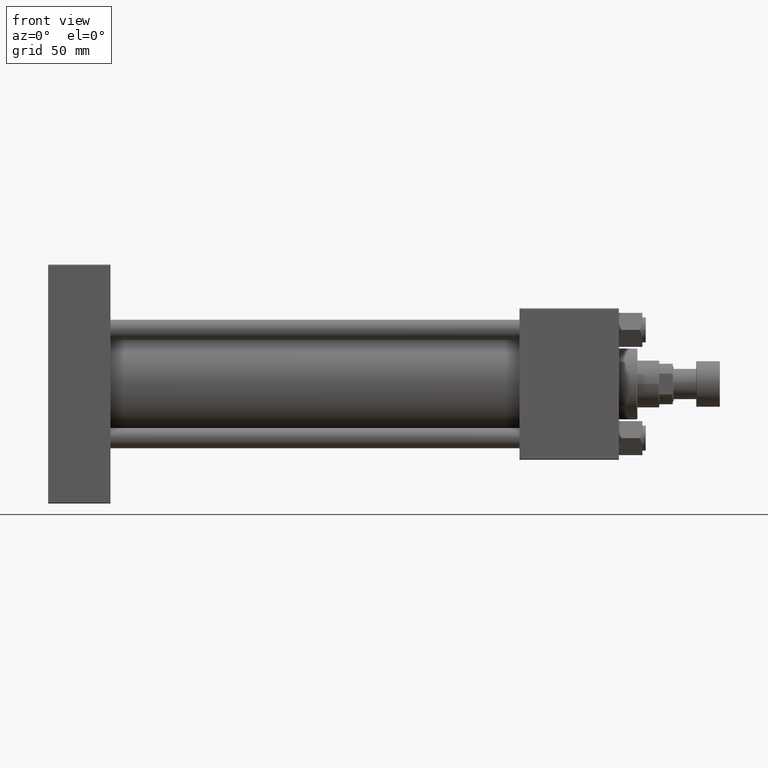
[diagram: clean part render]
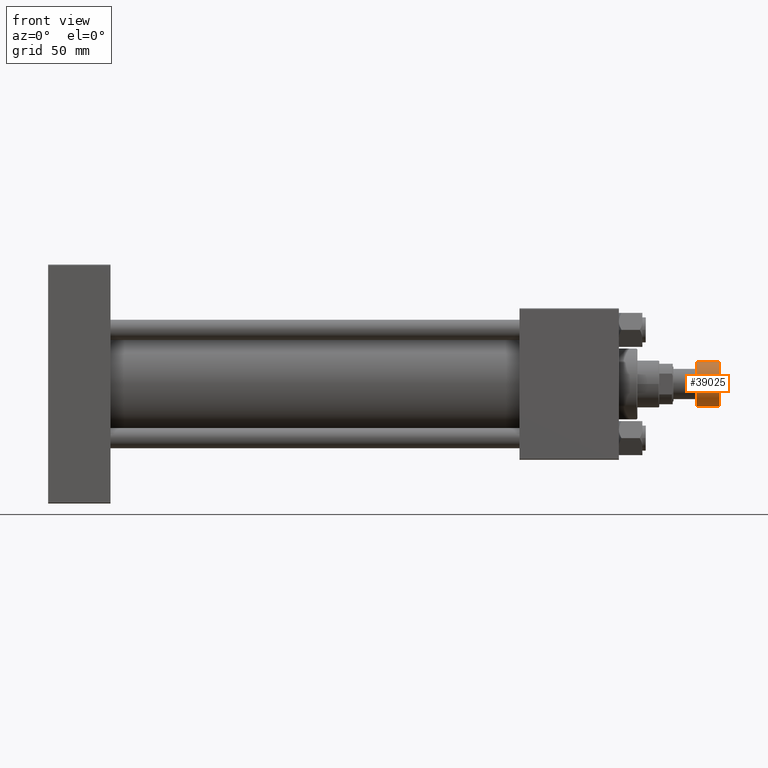
[diagram: same view with one face highlighted and labeled with its STEP entity id]
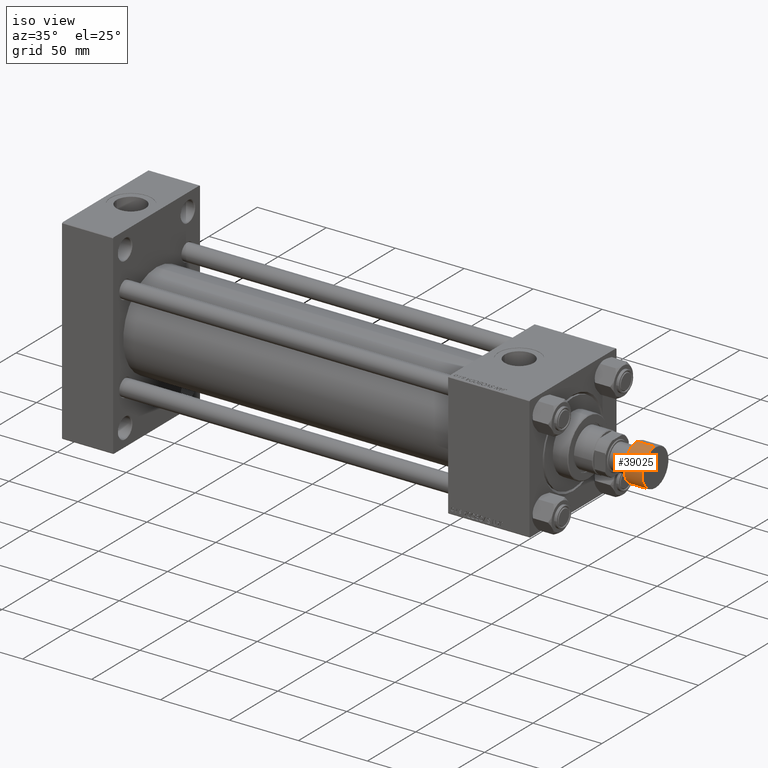
[diagram: same view with one face highlighted and labeled with its STEP entity id]
A machine part, front view. The second image highlights one B-rep face of the part: STEP entity #39025.
A second angle (iso view) of the same face is appended — the face is thin or edge-on in the first view.
In plain terms, the highlighted cylindrical surface (edge-blend (fillet) strip) has radius 13.5 mm, axis along (1, 0, 0).
Its self-contained STEP definition (entity closure, byte-faithful):
#1142 = CIRCLE ( 'NONE', #13019, 13.50000000000000000 ) ;
#1221 = AXIS2_PLACEMENT_3D ( 'NONE', #11687, #49348, #24888 ) ;
#2373 = AXIS2_PLACEMENT_3D ( 'NONE', #46952, #42974, #6538 ) ;
#2594 = ORIENTED_EDGE ( 'NONE', *, *, #38574, .T. ) ;
#2744 = EDGE_CURVE ( 'NONE', #3974, #39154, #1142, .T. ) ;
#2931 = VECTOR ( 'NONE', #43822, 1000.000000000000000 ) ;
#3045 = CARTESIAN_POINT ( 'NONE',  ( -13.50000000000000000, 1.653273178848926867E-15, -0.5000000000000004441 ) ) ;
#3974 = VERTEX_POINT ( 'NONE', #51578 ) ;
#4763 = CARTESIAN_POINT ( 'NONE',  ( 0.000000000000000000, 0.000000000000000000, -13.50000000000000000 ) ) ;
#6538 = DIRECTION ( 'NONE',  ( 1.000000000000000000, 0.000000000000000000, 0.000000000000000000 ) ) ;
#11687 = CARTESIAN_POINT ( 'NONE',  ( 0.000000000000000000, 0.000000000000000000, -14.00000000000000000 ) ) ;
#12920 = FACE_OUTER_BOUND ( 'NONE', #24898, .T. ) ;
#13019 = AXIS2_PLACEMENT_3D ( 'NONE', #4763, #29214, #21503 ) ;
#15110 = CARTESIAN_POINT ( 'NONE',  ( -13.50000000000000000, 1.653273178848926867E-15, -14.00000000000000000 ) ) ;
#19196 = VERTEX_POINT ( 'NONE', #46022 ) ;
#19225 = CARTESIAN_POINT ( 'NONE',  ( 13.50000000000000000, 0.000000000000000000, -14.00000000000000000 ) ) ;
#20805 = VERTEX_POINT ( 'NONE', #3045 ) ;
#21503 = DIRECTION ( 'NONE',  ( 1.000000000000000000, 0.000000000000000000, 0.000000000000000000 ) ) ;
#23192 = LINE ( 'NONE', #19225, #39452 ) ;
#24888 = DIRECTION ( 'NONE',  ( 1.000000000000000000, 0.000000000000000000, 0.000000000000000000 ) ) ;
#24898 = EDGE_LOOP ( 'NONE', ( #30417, #37805, #2594, #26132 ) ) ;
#26118 = CIRCLE ( 'NONE', #2373, 13.50000000000000000 ) ;
#26132 = ORIENTED_EDGE ( 'NONE', *, *, #49947, .T. ) ;
#27653 = CYLINDRICAL_SURFACE ( 'NONE', #1221, 13.50000000000000000 ) ;
#29214 = DIRECTION ( 'NONE',  ( 0.000000000000000000, 0.000000000000000000, 1.000000000000000000 ) ) ;
#30417 = ORIENTED_EDGE ( 'NONE', *, *, #41918, .F. ) ;
#37805 = ORIENTED_EDGE ( 'NONE', *, *, #2744, .T. ) ;
#38574 = EDGE_CURVE ( 'NONE', #39154, #19196, #23192, .T. ) ;
#39025 = ADVANCED_FACE ( 'NONE', ( #12920 ), #27653, .T. ) ;
#39154 = VERTEX_POINT ( 'NONE', #39235 ) ;
#39235 = CARTESIAN_POINT ( 'NONE',  ( 13.50000000000000000, 0.000000000000000000, -13.50000000000000000 ) ) ;
#39420 = DIRECTION ( 'NONE',  ( 0.000000000000000000, 0.000000000000000000, 1.000000000000000000 ) ) ;
#39452 = VECTOR ( 'NONE', #39420, 1000.000000000000000 ) ;
#41918 = EDGE_CURVE ( 'NONE', #3974, #20805, #51769, .T. ) ;
#42974 = DIRECTION ( 'NONE',  ( -0.000000000000000000, -0.000000000000000000, -1.000000000000000000 ) ) ;
#43822 = DIRECTION ( 'NONE',  ( 0.000000000000000000, 0.000000000000000000, 1.000000000000000000 ) ) ;
#46022 = CARTESIAN_POINT ( 'NONE',  ( 13.50000000000000000, 0.000000000000000000, -0.5000000000000004441 ) ) ;
#46952 = CARTESIAN_POINT ( 'NONE',  ( 0.000000000000000000, 0.000000000000000000, -0.5000000000000004441 ) ) ;
#49348 = DIRECTION ( 'NONE',  ( 0.000000000000000000, 0.000000000000000000, 1.000000000000000000 ) ) ;
#49947 = EDGE_CURVE ( 'NONE', #19196, #20805, #26118, .T. ) ;
#51578 = CARTESIAN_POINT ( 'NONE',  ( -13.50000000000000000, 1.653273178848926867E-15, -13.50000000000000000 ) ) ;
#51769 = LINE ( 'NONE', #15110, #2931 ) ;